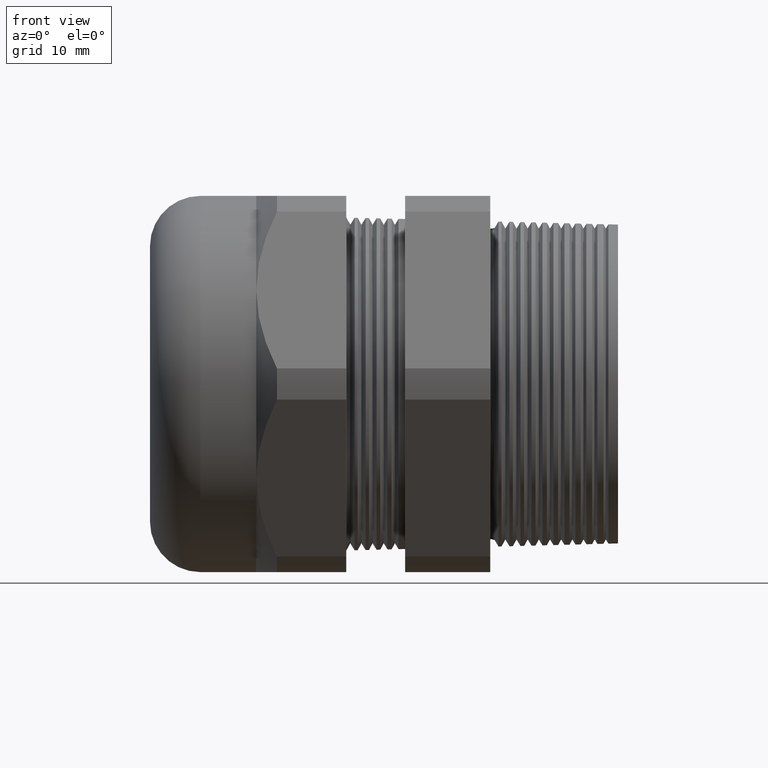
[diagram: clean part render]
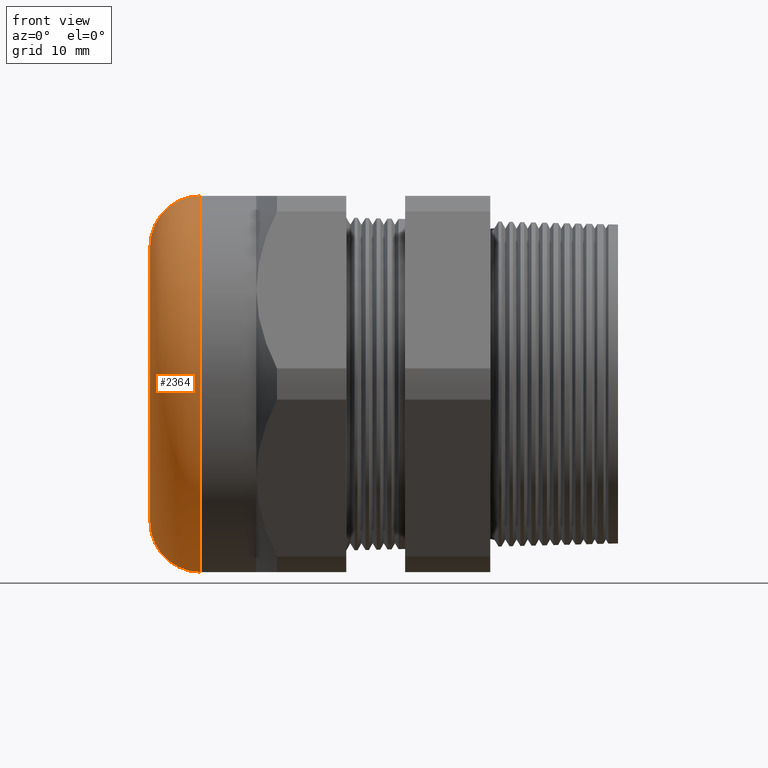
[diagram: same view with one face highlighted and labeled with its STEP entity id]
A machine part, front view. The second image highlights one B-rep face of the part: STEP entity #2364.
In plain terms, the highlighted toroidal blend (fillet) surface has major radius 19.431 mm and minor (blend) radius 7.112 mm.
Its self-contained STEP definition (entity closure, byte-faithful):
#595 = DIRECTION ( 'NONE',  ( 0.0000000000000000000, 0.0000000000000000000, 1.000000000000000000 ) ) ;
#596 = DIRECTION ( 'NONE',  ( -1.000000000000000000, 0.0000000000000000000, 0.0000000000000000000 ) ) ;
#597 = AXIS2_PLACEMENT_3D ( 'NONE', #603, #596, #595 ) ;
#598 = TOROIDAL_SURFACE ( 'NONE', #597, 0.7649999999999999000, 0.2800000000000000300 ) ;
#599 = FACE_OUTER_BOUND ( 'NONE', #2365, .T. ) ;
#603 = CARTESIAN_POINT ( 'NONE',  ( -1.919999999999999900, 0.0000000000000000000, 0.0000000000000000000 ) ) ;
#1158 = VERTEX_POINT ( 'NONE', #2676 ) ;
#1160 = EDGE_CURVE ( 'NONE', #1184, #1158, #2674, .T. ) ;
#1179 = VERTEX_POINT ( 'NONE', #2762 ) ;
#1184 = VERTEX_POINT ( 'NONE', #2749 ) ;
#1186 = EDGE_CURVE ( 'NONE', #1179, #1187, #2748, .T. ) ;
#1187 = VERTEX_POINT ( 'NONE', #2743 ) ;
#1936 = EDGE_CURVE ( 'NONE', #1187, #1158, #4303, .T. ) ;
#1949 = EDGE_CURVE ( 'NONE', #1184, #1179, #4280, .T. ) ;
#2364 = ADVANCED_FACE ( 'NONE', ( #599 ), #598, .T. ) ;
#2365 = EDGE_LOOP ( 'NONE', ( #2366, #2367, #2368, #2369 ) ) ;
#2366 = ORIENTED_EDGE ( 'NONE', *, *, #1186, .F. ) ;
#2367 = ORIENTED_EDGE ( 'NONE', *, *, #1949, .F. ) ;
#2368 = ORIENTED_EDGE ( 'NONE', *, *, #1160, .T. ) ;
#2369 = ORIENTED_EDGE ( 'NONE', *, *, #1936, .F. ) ;
#2674 = CIRCLE ( 'NONE', #2734, 0.2800000000000000300 ) ;
#2676 = CARTESIAN_POINT ( 'NONE',  ( -2.200000000000000200, 0.0000000000000000000, 0.7649999999999999000 ) ) ;
#2731 = DIRECTION ( 'NONE',  ( 0.0000000000000000000, 0.0000000000000000000, -1.000000000000000000 ) ) ;
#2732 = DIRECTION ( 'NONE',  ( 0.0000000000000000000, -1.000000000000000000, 0.0000000000000000000 ) ) ;
#2733 = CARTESIAN_POINT ( 'NONE',  ( -1.919999999999999900, 0.0000000000000000000, 0.7649999999999999000 ) ) ;
#2734 = AXIS2_PLACEMENT_3D ( 'NONE', #2733, #2732, #2731 ) ;
#2743 = CARTESIAN_POINT ( 'NONE',  ( -2.200000000000000200, 1.108305353228354700E-016, -0.7649999999999999000 ) ) ;
#2744 = DIRECTION ( 'NONE',  ( 0.0000000000000000000, -1.224646799147353000E-016, 1.000000000000000000 ) ) ;
#2745 = DIRECTION ( 'NONE',  ( 0.0000000000000000000, 1.000000000000000000, 1.224646799147353200E-016 ) ) ;
#2746 = CARTESIAN_POINT ( 'NONE',  ( -1.919999999999999900, 9.368548013477251000E-017, -0.7649999999999999000 ) ) ;
#2747 = AXIS2_PLACEMENT_3D ( 'NONE', #2746, #2745, #2744 ) ;
#2748 = CIRCLE ( 'NONE', #2747, 0.2800000000000000300 ) ;
#2749 = CARTESIAN_POINT ( 'NONE',  ( -1.919999999999999900, 1.279755905108984100E-016, 1.044999999999999900 ) ) ;
#2762 = CARTESIAN_POINT ( 'NONE',  ( -1.919999999999999900, 0.0000000000000000000, -1.044999999999999900 ) ) ;
#4271 = DIRECTION ( 'NONE',  ( 0.0000000000000000000, 0.0000000000000000000, 1.000000000000000000 ) ) ;
#4272 = DIRECTION ( 'NONE',  ( 1.000000000000000000, 0.0000000000000000000, 0.0000000000000000000 ) ) ;
#4273 = CARTESIAN_POINT ( 'NONE',  ( -1.919999999999999900, 0.0000000000000000000, 0.0000000000000000000 ) ) ;
#4274 = AXIS2_PLACEMENT_3D ( 'NONE', #4273, #4272, #4271 ) ;
#4280 = CIRCLE ( 'NONE', #4274, 1.044999999999999900 ) ;
#4299 = DIRECTION ( 'NONE',  ( 0.0000000000000000000, 0.0000000000000000000, 1.000000000000000000 ) ) ;
#4300 = DIRECTION ( 'NONE',  ( -1.000000000000000000, 0.0000000000000000000, 0.0000000000000000000 ) ) ;
#4301 = CARTESIAN_POINT ( 'NONE',  ( -2.200000000000000200, 0.0000000000000000000, 0.0000000000000000000 ) ) ;
#4302 = AXIS2_PLACEMENT_3D ( 'NONE', #4301, #4300, #4299 ) ;
#4303 = CIRCLE ( 'NONE', #4302, 0.7649999999999999000 ) ;